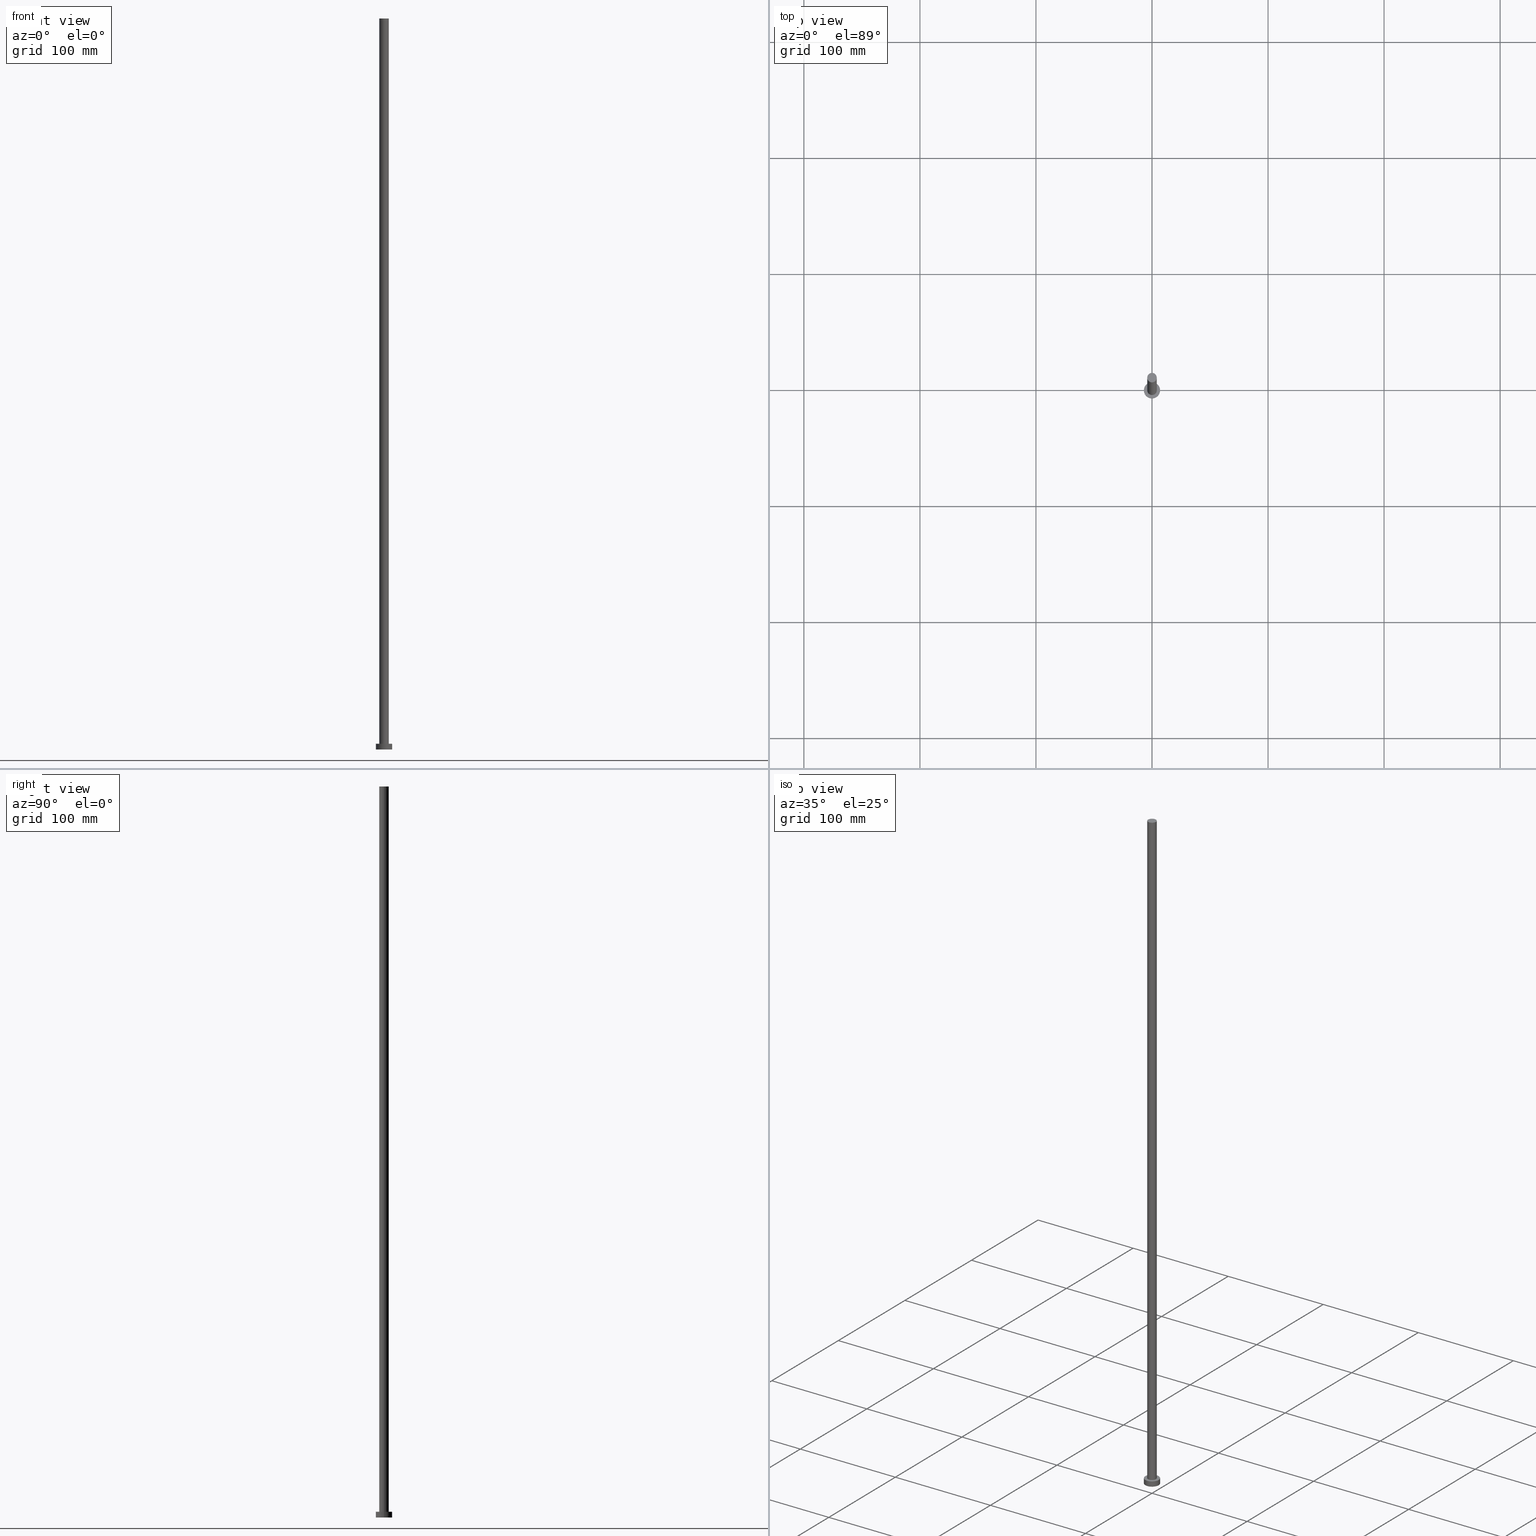
[diagram: canonical four-view strip — front | top / right | iso, engineering-drawing reading convention]
A machine part, canonical four-view strip (front | top / right | iso — engineering-drawing reading convention). The complete STEP part file that produces these views, byte-faithful:
ISO-10303-21;
HEADER;
FILE_DESCRIPTION (( 'STEP AP203' ),
    '1' );
FILE_NAME ('0847.STEP',
    '2023-02-12T11:45:17',
    ( '' ),
    ( '' ),
    'SwSTEP 2.0',
    'SolidWorks 2019',
    '' );
FILE_SCHEMA (( 'CONFIG_CONTROL_DESIGN' ));
ENDSEC;

DATA;
#1 = ADVANCED_FACE ( 'NONE', ( #7 ), #198, .F. ) ;
#2 = ORIENTED_EDGE ( 'NONE', *, *, #106, .T. ) ;
#3 = CC_DESIGN_PERSON_AND_ORGANIZATION_ASSIGNMENT ( #53, #192, ( #54 ) ) ;
#4 = AXIS2_PLACEMENT_3D ( 'NONE', #45, #205, #48 ) ;
#5 = CARTESIAN_POINT ( 'NONE',  ( 0.000000000000000000, 0.000000000000000000, 0.000000000000000000 ) ) ;
#6 = PERSON_AND_ORGANIZATION ( #202, #148 ) ;
#7 = FACE_OUTER_BOUND ( 'NONE', #191, .T. ) ;
#8 = APPROVAL_ROLE ( '' ) ;
#9 = CARTESIAN_POINT ( 'NONE',  ( 7.000000000000000000, 8.572527594031473190E-16, 0.000000000000000000 ) ) ;
#10 = CARTESIAN_POINT ( 'NONE',  ( 4.099999999999999645, 5.021051876504147385E-16, 630.0000000000000000 ) ) ;
#11 = CC_DESIGN_PERSON_AND_ORGANIZATION_ASSIGNMENT ( #6, #230, ( #168 ) ) ;
#12 = ORIENTED_EDGE ( 'NONE', *, *, #112, .F. ) ;
#13 = CARTESIAN_POINT ( 'NONE',  ( 0.000000000000000000, 0.000000000000000000, 630.0000000000000000 ) ) ;
#14 = DIRECTION ( 'NONE',  ( 1.000000000000000000, 0.000000000000000000, -0.000000000000000000 ) ) ;
#15 = AXIS2_PLACEMENT_3D ( 'NONE', #13, #80, #29 ) ;
#16 = CARTESIAN_POINT ( 'NONE',  ( 0.000000000000000000, 0.000000000000000000, 630.0000000000000000 ) ) ;
#17 = UNCERTAINTY_MEASURE_WITH_UNIT (LENGTH_MEASURE( 1.000000000000000082E-05 ), #40, 'distance_accuracy_value', 'NONE');
#18 = CIRCLE ( 'NONE', #79, 4.099999999999999645 ) ;
#19 = DATE_AND_TIME ( #189, #91 ) ;
#20 = VERTEX_POINT ( 'NONE', #39 ) ;
#21 = CC_DESIGN_SECURITY_CLASSIFICATION ( #212, ( #54 ) ) ;
#22 = ORIENTED_EDGE ( 'NONE', *, *, #49, .T. ) ;
#23 = EDGE_CURVE ( 'NONE', #37, #67, #159, .T. ) ;
#24 = CARTESIAN_POINT ( 'NONE',  ( 0.000000000000000000, 0.000000000000000000, 0.000000000000000000 ) ) ;
#25 = ORIENTED_EDGE ( 'NONE', *, *, #85, .F. ) ;
#26 = CALENDAR_DATE ( 2023, 12, 2 ) ;
#27 = LINE ( 'NONE', #206, #139 ) ;
#28 = ORIENTED_EDGE ( 'NONE', *, *, #51, .T. ) ;
#29 = DIRECTION ( 'NONE',  ( -1.000000000000000000, 0.000000000000000000, 0.000000000000000000 ) ) ;
#30 = APPROVAL_PERSON_ORGANIZATION ( #58, #204, #8 ) ;
#31 = DIRECTION ( 'NONE',  ( 1.000000000000000000, 0.000000000000000000, 0.000000000000000000 ) ) ;
#32 = PRODUCT_RELATED_PRODUCT_CATEGORY ( 'detail', '', ( #168 ) ) ;
#33 = ADVANCED_FACE ( 'NONE', ( #57 ), #78, .T. ) ;
#34 = EDGE_LOOP ( 'NONE', ( #173, #134, #214, #152 ) ) ;
#35 = CIRCLE ( 'NONE', #175, 7.000000000000000000 ) ;
#36 = SECURITY_CLASSIFICATION_LEVEL ( 'unclassified' ) ;
#37 = VERTEX_POINT ( 'NONE', #83 ) ;
#38 = VERTEX_POINT ( 'NONE', #9 ) ;
#39 = CARTESIAN_POINT ( 'NONE',  ( -7.000000000000000000, 0.000000000000000000, 0.000000000000000000 ) ) ;
#40 =( LENGTH_UNIT ( ) NAMED_UNIT ( * ) SI_UNIT ( .MILLI., .METRE. ) );
#41 = CARTESIAN_POINT ( 'NONE',  ( 0.000000000000000000, 0.000000000000000000, 5.000000000000000000 ) ) ;
#42 = ADVANCED_FACE ( 'NONE', ( #229, #81 ), #201, .T. ) ;
#43 = PERSON_AND_ORGANIZATION_ROLE ( 'creator' ) ;
#44 = EDGE_LOOP ( 'NONE', ( #88, #101 ) ) ;
#45 = CARTESIAN_POINT ( 'NONE',  ( 0.000000000000000000, 0.000000000000000000, 5.000000000000000000 ) ) ;
#46 = DIRECTION ( 'NONE',  ( -0.000000000000000000, -0.000000000000000000, -1.000000000000000000 ) ) ;
#47 = CARTESIAN_POINT ( 'NONE',  ( 0.000000000000000000, 0.000000000000000000, 5.000000000000000000 ) ) ;
#48 = DIRECTION ( 'NONE',  ( 1.000000000000000000, 0.000000000000000000, 0.000000000000000000 ) ) ;
#49 = EDGE_CURVE ( 'NONE', #197, #114, #184, .T. ) ;
#50 = AXIS2_PLACEMENT_3D ( 'NONE', #149, #130, #31 ) ;
#51 = EDGE_CURVE ( 'NONE', #197, #20, #27, .T. ) ;
#52 = ORIENTED_EDGE ( 'NONE', *, *, #99, .T. ) ;
#53 = PERSON_AND_ORGANIZATION ( #202, #148 ) ;
#54 = PRODUCT_DEFINITION_FORMATION_WITH_SPECIFIED_SOURCE ( 'LIBOVOLN�', '', #168, .NOT_KNOWN. ) ;
#55 = PRODUCT_DEFINITION_SHAPE ( 'NONE', 'NONE',  #232 ) ;
#56 = ORIENTED_EDGE ( 'NONE', *, *, #99, .F. ) ;
#57 = FACE_OUTER_BOUND ( 'NONE', #188, .T. ) ;
#58 = PERSON_AND_ORGANIZATION ( #202, #148 ) ;
#59 = DIRECTION ( 'NONE',  ( 1.000000000000000000, 0.000000000000000000, -0.000000000000000000 ) ) ;
#60 = DATE_AND_TIME ( #213, #255 ) ;
#61 = CARTESIAN_POINT ( 'NONE',  ( 4.099999999999999645, 5.021051876504147385E-16, 630.0000000000000000 ) ) ;
#62 = DIRECTION ( 'NONE',  ( 0.000000000000000000, 0.000000000000000000, 1.000000000000000000 ) ) ;
#63 = CIRCLE ( 'NONE', #50, 7.000000000000000000 ) ;
#64 = FACE_OUTER_BOUND ( 'NONE', #34, .T. ) ;
#65 = ORIENTED_EDGE ( 'NONE', *, *, #49, .F. ) ;
#66 = CIRCLE ( 'NONE', #75, 4.099999999999999645 ) ;
#67 = VERTEX_POINT ( 'NONE', #117 ) ;
#68 = MECHANICAL_CONTEXT ( 'NONE', #208, 'mechanical' ) ;
#69 = DIRECTION ( 'NONE',  ( -0.000000000000000000, -0.000000000000000000, -1.000000000000000000 ) ) ;
#70 = CIRCLE ( 'NONE', #129, 4.099999999999999645 ) ;
#71 = DIRECTION ( 'NONE',  ( 0.000000000000000000, 0.000000000000000000, 1.000000000000000000 ) ) ;
#72 = EDGE_CURVE ( 'NONE', #37, #182, #18, .T. ) ;
#73 = VECTOR ( 'NONE', #227, 1000.000000000000000 ) ;
#74 = APPROVAL_ROLE ( '' ) ;
#75 = AXIS2_PLACEMENT_3D ( 'NONE', #16, #89, #165 ) ;
#76 = EDGE_LOOP ( 'NONE', ( #239, #220 ) ) ;
#77 = APPROVAL_ROLE ( '' ) ;
#78 = CYLINDRICAL_SURFACE ( 'NONE', #211, 7.000000000000000000 ) ;
#79 = AXIS2_PLACEMENT_3D ( 'NONE', #245, #154, #241 ) ;
#80 = DIRECTION ( 'NONE',  ( -0.000000000000000000, -0.000000000000000000, -1.000000000000000000 ) ) ;
#81 = FACE_OUTER_BOUND ( 'NONE', #162, .T. ) ;
#82 = COORDINATED_UNIVERSAL_TIME_OFFSET ( 1, 0, .AHEAD. ) ;
#83 = CARTESIAN_POINT ( 'NONE',  ( -4.099999999999999645, 0.000000000000000000, 630.0000000000000000 ) ) ;
#84 = DIRECTION ( 'NONE',  ( -0.000000000000000000, -0.000000000000000000, -1.000000000000000000 ) ) ;
#85 = EDGE_CURVE ( 'NONE', #114, #197, #35, .T. ) ;
#86 = DIRECTION ( 'NONE',  ( 0.000000000000000000, 0.000000000000000000, 1.000000000000000000 ) ) ;
#87 = LINE ( 'NONE', #10, #177 ) ;
#88 = ORIENTED_EDGE ( 'NONE', *, *, #72, .T. ) ;
#89 = DIRECTION ( 'NONE',  ( 0.000000000000000000, 0.000000000000000000, 1.000000000000000000 ) ) ;
#90 = AXIS2_PLACEMENT_3D ( 'NONE', #47, #156, #59 ) ;
#91 = LOCAL_TIME ( 12, 45, 16.00000000000000000, #113 ) ;
#92 = PERSON_AND_ORGANIZATION_ROLE ( 'classification_officer' ) ;
#93 = DATE_TIME_ROLE ( 'classification_date' ) ;
#94 = ADVANCED_FACE ( 'NONE', ( #222 ), #103, .T. ) ;
#95 = PERSON_AND_ORGANIZATION ( #202, #148 ) ;
#96 = AXIS2_PLACEMENT_3D ( 'NONE', #253, #71, #219 ) ;
#97 = ORIENTED_EDGE ( 'NONE', *, *, #85, .T. ) ;
#98 = DIRECTION ( 'NONE',  ( -0.000000000000000000, -0.000000000000000000, -1.000000000000000000 ) ) ;
#99 = EDGE_CURVE ( 'NONE', #114, #38, #246, .T. ) ;
#100 = CARTESIAN_POINT ( 'NONE',  ( -4.099999999999999645, 0.000000000000000000, 630.0000000000000000 ) ) ;
#101 = ORIENTED_EDGE ( 'NONE', *, *, #118, .T. ) ;
#102 = FACE_OUTER_BOUND ( 'NONE', #116, .T. ) ;
#103 = PLANE ( 'NONE',  #108 ) ;
#104 = DIRECTION ( 'NONE',  ( -0.000000000000000000, -0.000000000000000000, -1.000000000000000000 ) ) ;
#105 =( NAMED_UNIT ( * ) PLANE_ANGLE_UNIT ( ) SI_UNIT ( $, .RADIAN. ) );
#106 = EDGE_CURVE ( 'NONE', #133, #67, #143, .T. ) ;
#107 = APPROVAL_PERSON_ORGANIZATION ( #136, #158, #74 ) ;
#108 = AXIS2_PLACEMENT_3D ( 'NONE', #124, #181, #160 ) ;
#109 = LOCAL_TIME ( 12, 45, 16.00000000000000000, #82 ) ;
#110 = DATE_AND_TIME ( #217, #135 ) ;
#111 = ADVANCED_FACE ( 'NONE', ( #252 ), #164, .T. ) ;
#112 = EDGE_CURVE ( 'NONE', #38, #20, #63, .T. ) ;
#113 = COORDINATED_UNIVERSAL_TIME_OFFSET ( 1, 0, .AHEAD. ) ;
#114 = VERTEX_POINT ( 'NONE', #185 ) ;
#115 = ORIENTED_EDGE ( 'NONE', *, *, #23, .F. ) ;
#116 = EDGE_LOOP ( 'NONE', ( #210, #166, #2, #115 ) ) ;
#117 = CARTESIAN_POINT ( 'NONE',  ( -4.099999999999999645, 0.000000000000000000, 5.000000000000000000 ) ) ;
#118 = EDGE_CURVE ( 'NONE', #182, #37, #66, .T. ) ;
#119 = EDGE_CURVE ( 'NONE', #20, #38, #161, .T. ) ;
#120 = SHAPE_DEFINITION_REPRESENTATION ( #55, #150 ) ;
#121 = DIRECTION ( 'NONE',  ( -1.000000000000000000, 0.000000000000000000, 0.000000000000000000 ) ) ;
#122 = DIRECTION ( 'NONE',  ( -0.000000000000000000, -0.000000000000000000, -1.000000000000000000 ) ) ;
#123 = CYLINDRICAL_SURFACE ( 'NONE', #15, 4.099999999999999645 ) ;
#124 = CARTESIAN_POINT ( 'NONE',  ( 0.000000000000000000, 0.000000000000000000, 630.0000000000000000 ) ) ;
#125 = CARTESIAN_POINT ( 'NONE',  ( 4.099999999999999645, 5.021051876504147385E-16, 5.000000000000000000 ) ) ;
#126 = DIRECTION ( 'NONE',  ( 1.000000000000000000, 0.000000000000000000, 0.000000000000000000 ) ) ;
#127 =( NAMED_UNIT ( * ) SI_UNIT ( $, .STERADIAN. ) SOLID_ANGLE_UNIT ( ) );
#128 = CC_DESIGN_PERSON_AND_ORGANIZATION_ASSIGNMENT ( #95, #92, ( #212 ) ) ;
#129 = AXIS2_PLACEMENT_3D ( 'NONE', #203, #226, #228 ) ;
#130 = DIRECTION ( 'NONE',  ( 0.000000000000000000, 0.000000000000000000, 1.000000000000000000 ) ) ;
#131 = APPROVAL_PERSON_ORGANIZATION ( #235, #153, #77 ) ;
#132 = APPROVAL_STATUS ( 'not_yet_approved' ) ;
#133 = VERTEX_POINT ( 'NONE', #125 ) ;
#134 = ORIENTED_EDGE ( 'NONE', *, *, #72, .F. ) ;
#135 = LOCAL_TIME ( 12, 45, 16.00000000000000000, #196 ) ;
#136 = PERSON_AND_ORGANIZATION ( #202, #148 ) ;
#137 = COORDINATED_UNIVERSAL_TIME_OFFSET ( 1, 0, .AHEAD. ) ;
#138 = EDGE_LOOP ( 'NONE', ( #25, #52, #174, #249 ) ) ;
#139 = VECTOR ( 'NONE', #98, 1000.000000000000000 ) ;
#140 = CARTESIAN_POINT ( 'NONE',  ( 0.000000000000000000, 0.000000000000000000, 5.000000000000000000 ) ) ;
#141 = APPROVAL_DATE_TIME ( #244, #204 ) ;
#142 = DIRECTION ( 'NONE',  ( 1.000000000000000000, 0.000000000000000000, 0.000000000000000000 ) ) ;
#143 = CIRCLE ( 'NONE', #4, 4.099999999999999645 ) ;
#144 = CARTESIAN_POINT ( 'NONE',  ( 7.000000000000000000, 8.572527594031473190E-16, 5.000000000000000000 ) ) ;
#145 = DIRECTION ( 'NONE',  ( -1.000000000000000000, 0.000000000000000000, 0.000000000000000000 ) ) ;
#146 = APPLICATION_PROTOCOL_DEFINITION ( 'international standard', 'config_control_design', 1994, #208 ) ;
#147 = DIRECTION ( 'NONE',  ( -1.000000000000000000, 0.000000000000000000, 0.000000000000000000 ) ) ;
#148 = ORGANIZATION ( 'NEUR�EN�', 'NEUR�EN�', '' ) ;
#149 = CARTESIAN_POINT ( 'NONE',  ( 0.000000000000000000, 0.000000000000000000, 0.000000000000000000 ) ) ;
#150 = ADVANCED_BREP_SHAPE_REPRESENTATION ( '0847', ( #190, #247 ), #225 ) ;
#151 = DATE_TIME_ROLE ( 'creation_date' ) ;
#152 = ORIENTED_EDGE ( 'NONE', *, *, #231, .T. ) ;
#153 = APPROVAL ( #132, 'NEUR�EN�' ) ;
#154 = DIRECTION ( 'NONE',  ( 0.000000000000000000, 0.000000000000000000, 1.000000000000000000 ) ) ;
#155 = DIRECTION ( 'NONE',  ( 1.000000000000000000, 0.000000000000000000, 0.000000000000000000 ) ) ;
#156 = DIRECTION ( 'NONE',  ( 0.000000000000000000, 0.000000000000000000, 1.000000000000000000 ) ) ;
#157 = CALENDAR_DATE ( 2023, 12, 2 ) ;
#158 = APPROVAL ( #169, 'NEUR�EN�' ) ;
#159 = LINE ( 'NONE', #100, #215 ) ;
#160 = DIRECTION ( 'NONE',  ( 1.000000000000000000, 0.000000000000000000, -0.000000000000000000 ) ) ;
#161 = CIRCLE ( 'NONE', #96, 7.000000000000000000 ) ;
#162 = EDGE_LOOP ( 'NONE', ( #22, #97 ) ) ;
#163 = DIRECTION ( 'NONE',  ( 0.000000000000000000, 0.000000000000000000, 1.000000000000000000 ) ) ;
#164 = CYLINDRICAL_SURFACE ( 'NONE', #209, 7.000000000000000000 ) ;
#165 = DIRECTION ( 'NONE',  ( 1.000000000000000000, 0.000000000000000000, 0.000000000000000000 ) ) ;
#166 = ORIENTED_EDGE ( 'NONE', *, *, #237, .T. ) ;
#167 = CC_DESIGN_PERSON_AND_ORGANIZATION_ASSIGNMENT ( #172, #187, ( #54 ) ) ;
#168 = PRODUCT ( '0847', '0847', '', ( #68 ) ) ;
#169 = APPROVAL_STATUS ( 'not_yet_approved' ) ;
#170 = CC_DESIGN_PERSON_AND_ORGANIZATION_ASSIGNMENT ( #221, #43, ( #232 ) ) ;
#171 = AXIS2_PLACEMENT_3D ( 'NONE', #180, #84, #121 ) ;
#172 = PERSON_AND_ORGANIZATION ( #202, #148 ) ;
#173 = ORIENTED_EDGE ( 'NONE', *, *, #237, .F. ) ;
#174 = ORIENTED_EDGE ( 'NONE', *, *, #112, .T. ) ;
#175 = AXIS2_PLACEMENT_3D ( 'NONE', #140, #62, #142 ) ;
#176 = CARTESIAN_POINT ( 'NONE',  ( 0.000000000000000000, 0.000000000000000000, 5.000000000000000000 ) ) ;
#177 = VECTOR ( 'NONE', #46, 1000.000000000000000 ) ;
#178 = APPROVAL_STATUS ( 'not_yet_approved' ) ;
#179 = DIRECTION ( 'NONE',  ( 0.000000000000000000, 0.000000000000000000, 1.000000000000000000 ) ) ;
#180 = CARTESIAN_POINT ( 'NONE',  ( 0.000000000000000000, 0.000000000000000000, 630.0000000000000000 ) ) ;
#181 = DIRECTION ( 'NONE',  ( 0.000000000000000000, 0.000000000000000000, 1.000000000000000000 ) ) ;
#182 = VERTEX_POINT ( 'NONE', #61 ) ;
#183 = ADVANCED_FACE ( 'NONE', ( #64 ), #123, .T. ) ;
#184 = CIRCLE ( 'NONE', #254, 7.000000000000000000 ) ;
#185 = CARTESIAN_POINT ( 'NONE',  ( 7.000000000000000000, 8.572527594031473190E-16, 5.000000000000000000 ) ) ;
#186 = AXIS2_PLACEMENT_3D ( 'NONE', #5, #179, #14 ) ;
#187 = PERSON_AND_ORGANIZATION_ROLE ( 'creator' ) ;
#188 = EDGE_LOOP ( 'NONE', ( #56, #65, #28, #193 ) ) ;
#189 = CALENDAR_DATE ( 2023, 12, 2 ) ;
#190 = MANIFOLD_SOLID_BREP ( 'P�idat vysunut�m3', #194 ) ;
#191 = EDGE_LOOP ( 'NONE', ( #218, #12 ) ) ;
#192 = PERSON_AND_ORGANIZATION_ROLE ( 'design_supplier' ) ;
#193 = ORIENTED_EDGE ( 'NONE', *, *, #119, .T. ) ;
#194 = CLOSED_SHELL ( 'NONE', ( #224, #111, #33, #42, #1, #183, #94 ) ) ;
#195 = CC_DESIGN_APPROVAL ( #158, ( #212 ) ) ;
#196 = COORDINATED_UNIVERSAL_TIME_OFFSET ( 1, 0, .AHEAD. ) ;
#197 = VERTEX_POINT ( 'NONE', #199 ) ;
#198 = PLANE ( 'NONE',  #186 ) ;
#199 = CARTESIAN_POINT ( 'NONE',  ( -7.000000000000000000, 0.000000000000000000, 5.000000000000000000 ) ) ;
#200 = COORDINATED_UNIVERSAL_TIME_OFFSET ( 1, 0, .AHEAD. ) ;
#201 = PLANE ( 'NONE',  #90 ) ;
#202 = PERSON ( 'NEUR�EN�', 'NEUR�EN�', 'NEUR�EN�', ('NEUR�EN�'), ('NEUR�EN�'), ('NEUR�EN�') ) ;
#203 = CARTESIAN_POINT ( 'NONE',  ( 0.000000000000000000, 0.000000000000000000, 5.000000000000000000 ) ) ;
#204 = APPROVAL ( #178, 'NEUR�EN�' ) ;
#205 = DIRECTION ( 'NONE',  ( 0.000000000000000000, 0.000000000000000000, 1.000000000000000000 ) ) ;
#206 = CARTESIAN_POINT ( 'NONE',  ( -7.000000000000000000, 0.000000000000000000, 5.000000000000000000 ) ) ;
#207 = CC_DESIGN_DATE_AND_TIME_ASSIGNMENT ( #19, #93, ( #212 ) ) ;
#208 = APPLICATION_CONTEXT ( 'configuration controlled 3d designs of mechanical parts and assemblies' ) ;
#209 = AXIS2_PLACEMENT_3D ( 'NONE', #251, #69, #147 ) ;
#210 = ORIENTED_EDGE ( 'NONE', *, *, #118, .F. ) ;
#211 = AXIS2_PLACEMENT_3D ( 'NONE', #176, #104, #145 ) ;
#212 = SECURITY_CLASSIFICATION ( '', '', #36 ) ;
#213 = CALENDAR_DATE ( 2023, 12, 2 ) ;
#214 = ORIENTED_EDGE ( 'NONE', *, *, #23, .T. ) ;
#215 = VECTOR ( 'NONE', #122, 1000.000000000000000 ) ;
#216 = LOCAL_TIME ( 12, 45, 16.00000000000000000, #200 ) ;
#217 = CALENDAR_DATE ( 2023, 12, 2 ) ;
#218 = ORIENTED_EDGE ( 'NONE', *, *, #119, .F. ) ;
#219 = DIRECTION ( 'NONE',  ( 1.000000000000000000, 0.000000000000000000, 0.000000000000000000 ) ) ;
#220 = ORIENTED_EDGE ( 'NONE', *, *, #106, .F. ) ;
#221 = PERSON_AND_ORGANIZATION ( #202, #148 ) ;
#222 = FACE_OUTER_BOUND ( 'NONE', #44, .T. ) ;
#223 = APPLICATION_CONTEXT ( 'configuration controlled 3d designs of mechanical parts and assemblies' ) ;
#224 = ADVANCED_FACE ( 'NONE', ( #102 ), #250, .T. ) ;
#225 =( GEOMETRIC_REPRESENTATION_CONTEXT ( 3 ) GLOBAL_UNCERTAINTY_ASSIGNED_CONTEXT ( ( #17 ) ) GLOBAL_UNIT_ASSIGNED_CONTEXT ( ( #40, #105, #127 ) ) REPRESENTATION_CONTEXT ( 'NONE', 'WORKASPACE' ) );
#226 = DIRECTION ( 'NONE',  ( 0.000000000000000000, 0.000000000000000000, 1.000000000000000000 ) ) ;
#227 = DIRECTION ( 'NONE',  ( -0.000000000000000000, -0.000000000000000000, -1.000000000000000000 ) ) ;
#228 = DIRECTION ( 'NONE',  ( 1.000000000000000000, 0.000000000000000000, 0.000000000000000000 ) ) ;
#229 = FACE_BOUND ( 'NONE', #76, .T. ) ;
#230 = PERSON_AND_ORGANIZATION_ROLE ( 'design_owner' ) ;
#231 = EDGE_CURVE ( 'NONE', #67, #133, #70, .T. ) ;
#232 = PRODUCT_DEFINITION ( 'NEZN�M�', '', #54, #234 ) ;
#233 = DATE_AND_TIME ( #26, #216 ) ;
#234 = DESIGN_CONTEXT ( 'detailed design', #223, 'design' ) ;
#235 = PERSON_AND_ORGANIZATION ( #202, #148 ) ;
#236 = CC_DESIGN_APPROVAL ( #153, ( #54 ) ) ;
#237 = EDGE_CURVE ( 'NONE', #182, #133, #87, .T. ) ;
#238 = APPROVAL_DATE_TIME ( #110, #153 ) ;
#239 = ORIENTED_EDGE ( 'NONE', *, *, #231, .F. ) ;
#240 = CC_DESIGN_DATE_AND_TIME_ASSIGNMENT ( #233, #151, ( #232 ) ) ;
#241 = DIRECTION ( 'NONE',  ( 1.000000000000000000, 0.000000000000000000, 0.000000000000000000 ) ) ;
#242 = CC_DESIGN_APPROVAL ( #204, ( #232 ) ) ;
#243 = APPLICATION_PROTOCOL_DEFINITION ( 'international standard', 'config_control_design', 1994, #223 ) ;
#244 = DATE_AND_TIME ( #157, #109 ) ;
#245 = CARTESIAN_POINT ( 'NONE',  ( 0.000000000000000000, 0.000000000000000000, 630.0000000000000000 ) ) ;
#246 = LINE ( 'NONE', #144, #73 ) ;
#247 = AXIS2_PLACEMENT_3D ( 'NONE', #24, #163, #155 ) ;
#248 = APPROVAL_DATE_TIME ( #60, #158 ) ;
#249 = ORIENTED_EDGE ( 'NONE', *, *, #51, .F. ) ;
#250 = CYLINDRICAL_SURFACE ( 'NONE', #171, 4.099999999999999645 ) ;
#251 = CARTESIAN_POINT ( 'NONE',  ( 0.000000000000000000, 0.000000000000000000, 5.000000000000000000 ) ) ;
#252 = FACE_OUTER_BOUND ( 'NONE', #138, .T. ) ;
#253 = CARTESIAN_POINT ( 'NONE',  ( 0.000000000000000000, 0.000000000000000000, 0.000000000000000000 ) ) ;
#254 = AXIS2_PLACEMENT_3D ( 'NONE', #41, #86, #126 ) ;
#255 = LOCAL_TIME ( 12, 45, 16.00000000000000000, #137 ) ;
ENDSEC;
END-ISO-10303-21;
